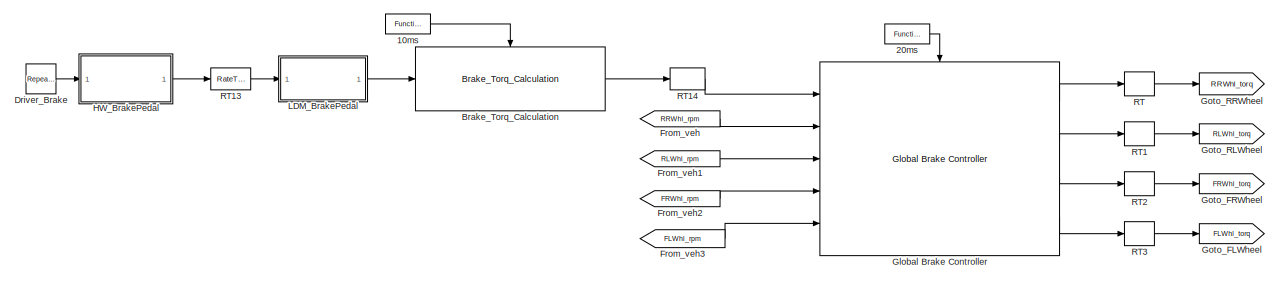
[diagram: root canvas - part 1/3, full width, top band]
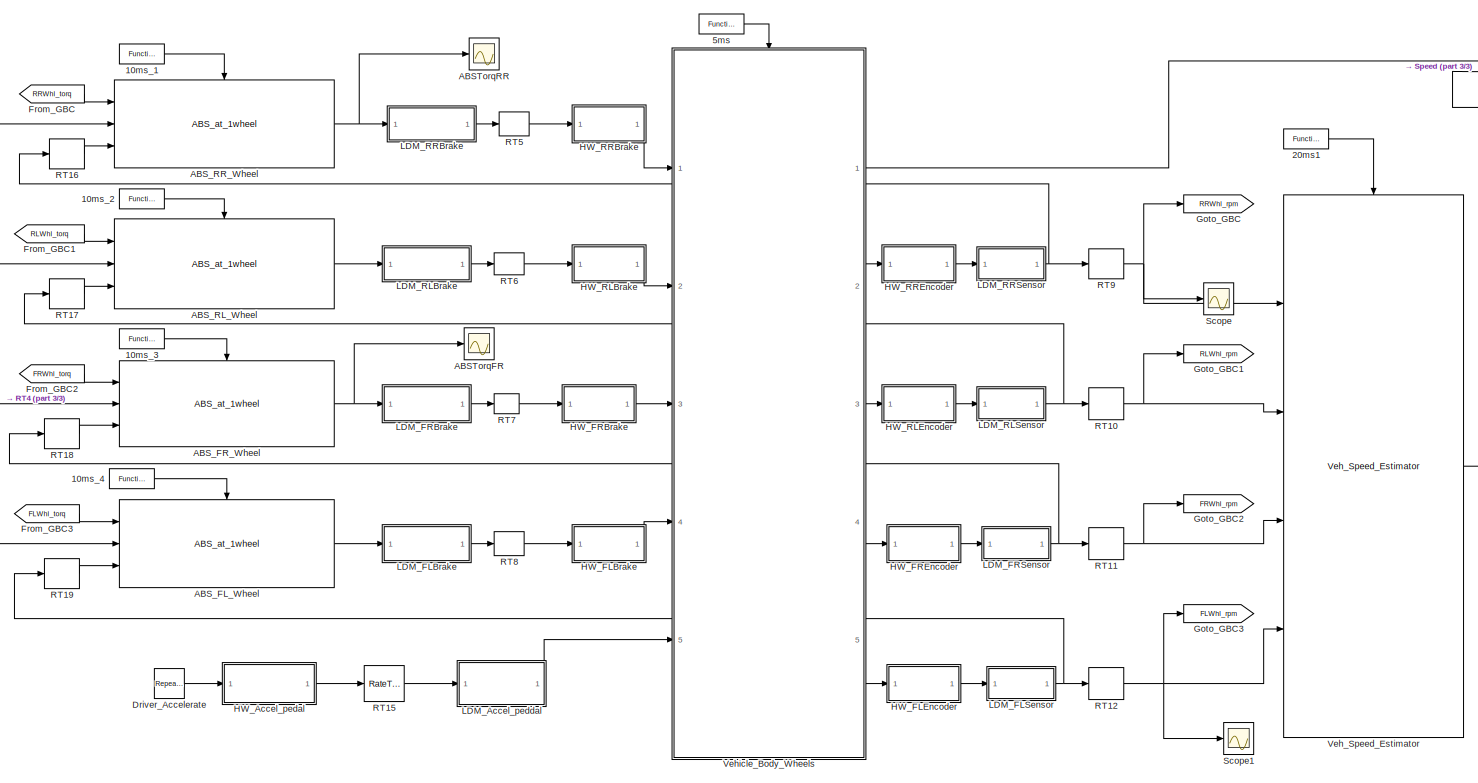
[diagram: root canvas - part 2/3, full width, middle band]
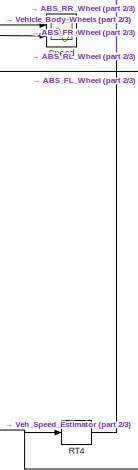
[diagram: root canvas - part 3/3, middle right region]
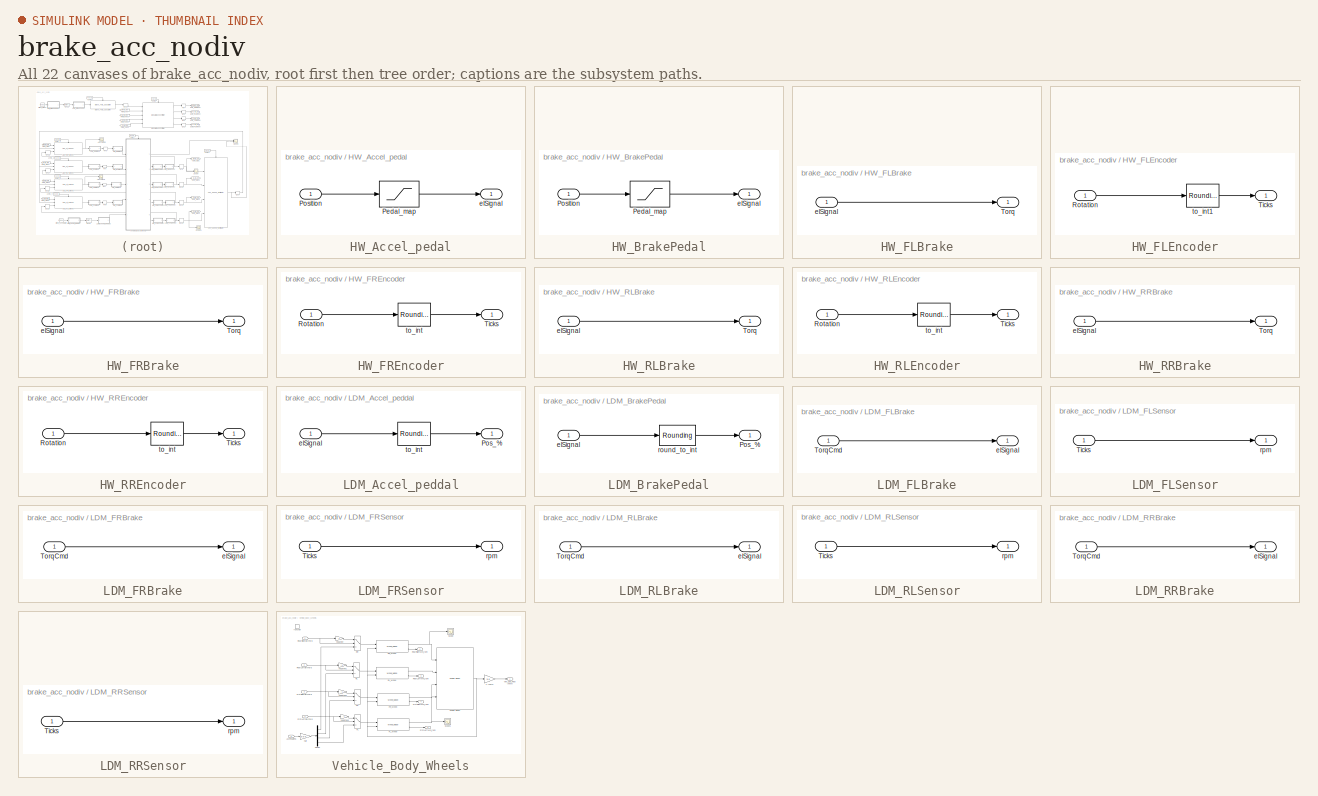
[diagram: thumbnail index - all 22 canvases of the model, root first then tree order]
MODEL brake_acc_nodiv
KIND model
CONFIG PostLoadFcn = parameters
BLOCK [Reference] 10ms  REF=simulink/Ports &\nSubsystems/Function-Call\nGenerator
  Ports = [0, 1]
  SID = 1
  SourceBlock = simulink/Ports &\nSubsystems/Function-Call\nGenerator
  SourceType = Function-Call Generator
  numberOfIterations = 1
  sample_time = T_brake_pedal
BLOCK [Reference] 10ms_1  REF=simulink/Ports &\nSubsystems/Function-Call\nGenerator
  Ports = [0, 1]
  SID = 2
  SourceBlock = simulink/Ports &\nSubsystems/Function-Call\nGenerator
  SourceType = Function-Call Generator
  numberOfIterations = 1
  sample_time = T_abs
BLOCK [Reference] 10ms_2  REF=simulink/Ports &\nSubsystems/Function-Call\nGenerator
  Ports = [0, 1]
  SID = 171
  SourceBlock = simulink/Ports &\nSubsystems/Function-Call\nGenerator
  SourceType = Function-Call Generator
  numberOfIterations = 1
  sample_time = T_abs
BLOCK [Reference] 10ms_3  REF=simulink/Ports &\nSubsystems/Function-Call\nGenerator
  Ports = [0, 1]
  SID = 172
  SourceBlock = simulink/Ports &\nSubsystems/Function-Call\nGenerator
  SourceType = Function-Call Generator
  numberOfIterations = 1
  sample_time = T_abs
BLOCK [Reference] 10ms_4  REF=simulink/Ports &\nSubsystems/Function-Call\nGenerator
  Ports = [0, 1]
  SID = 173
  SourceBlock = simulink/Ports &\nSubsystems/Function-Call\nGenerator
  SourceType = Function-Call Generator
  numberOfIterations = 1
  sample_time = T_abs
BLOCK [Reference] 20ms  REF=simulink/Ports &\nSubsystems/Function-Call\nGenerator
  Ports = [0, 1]
  SID = 6
  SourceBlock = simulink/Ports &\nSubsystems/Function-Call\nGenerator
  SourceType = Function-Call Generator
  numberOfIterations = 1
  sample_time = T_brake_ctrl
BLOCK [Reference] 20ms1  REF=simulink/Ports &\nSubsystems/Function-Call\nGenerator
  Ports = [0, 1]
  SID = 176
  SourceBlock = simulink/Ports &\nSubsystems/Function-Call\nGenerator
  SourceType = Function-Call Generator
  numberOfIterations = 1
  sample_time = T_spd_est
BLOCK [Reference] 5ms  REF=simulink/Ports &\nSubsystems/Function-Call\nGenerator
  Ports = [0, 1]
  SID = 7
  SourceBlock = simulink/Ports &\nSubsystems/Function-Call\nGenerator
  SourceType = Function-Call Generator
  numberOfIterations = 1
  sample_time = T_veh
BLOCK [Scope] ABSTorqFR
  Ports = [1]
  SID = 12
  ScopeSpecificationString = C++SS(StrPVP('Location','[222, 298, 1662, 1122]'),StrPVP('Open','off'),StrPVP('ZoomMode','xonly'),MxPVP('AxesTitles',24,'struct(''axes1'',''%<SignalLabel>'')'),StrPVP('SaveName','ScopeData3'),StrPVP('DataFormat','StructureWithTime'),StrPVP('BlockParamSampleTime','0'),StrPVP('LimitDataPoints','on'),StrPVP('Decimation','1'),StrPVP('BlockParamSampleInput','off'))
BLOCK [Scope] ABSTorqRR
  Ports = [1]
  SID = 13
  ScopeSpecificationString = C++SS(StrPVP('Location','[398, 150, 1838, 974]'),StrPVP('Open','off'),StrPVP('ZoomMode','xonly'),MxPVP('AxesTitles',24,'struct(''axes1'',''%<SignalLabel>'')'),StrPVP('SaveName','ScopeData2'),StrPVP('DataFormat','StructureWithTime'),StrPVP('BlockParamSampleTime','0'),StrPVP('LimitDataPoints','on'),StrPVP('Decimation','1'),StrPVP('BlockParamSampleInput','off'))
BLOCK [Reference] ABS_FL_Wheel  REF=lib_abs_nodiv/ABS_at_1wheel  (lib defined in mdl_9edf84e76d26, mdl_eaaba4e16ff2)
  Ports = [3, 1, 0, 1]
  SID = 155
  SourceBlock = lib_abs_nodiv/ABS_at_1wheel
  SourceType = SubSystem
BLOCK [Reference] ABS_FR_Wheel  REF=lib_abs_nodiv/ABS_at_1wheel  (lib defined in mdl_9edf84e76d26, mdl_eaaba4e16ff2)
  Ports = [3, 1, 0, 1]
  SID = 154
  SourceBlock = lib_abs_nodiv/ABS_at_1wheel
  SourceType = SubSystem
BLOCK [Reference] ABS_RL_Wheel  REF=lib_abs_nodiv/ABS_at_1wheel  (lib defined in mdl_9edf84e76d26, mdl_eaaba4e16ff2)
  Ports = [3, 1, 0, 1]
  SID = 153
  SourceBlock = lib_abs_nodiv/ABS_at_1wheel
  SourceType = SubSystem
BLOCK [Reference] ABS_RR_Wheel  REF=lib_abs_nodiv/ABS_at_1wheel  (lib defined in mdl_9edf84e76d26, mdl_eaaba4e16ff2)
  Ports = [3, 1, 0, 1]
  SID = 152
  SourceBlock = lib_abs_nodiv/ABS_at_1wheel
  SourceType = SubSystem
BLOCK [Reference] Brake_Torq_Calculation  REF=lib_brake_torque_cal_nodiv/Brake_Torq_Calculation  (lib defined in mdl_0e0155897f42)
  Ports = [1, 1, 0, 1]
  SID = 160
  SourceBlock = lib_brake_torque_cal_nodiv/Brake_Torq_Calculation
  SourceType = SubSystem
BLOCK [Reference] Driver_Accelerate  REF=simulink/Sources/Repeating\nSequence
  Ports = [0, 1]
  SID = 16
  SourceBlock = simulink/Sources/Repeating\nSequence
  SourceType = Repeating table
  rep_seq_t = [0 1 10.5 11 100]
  rep_seq_y = [0 100 100 0 0]
BLOCK [Reference] Driver_Brake  REF=simulink/Sources/Repeating\nSequence
  Ports = [0, 1]
  SID = 17
  SourceBlock = simulink/Sources/Repeating\nSequence
  SourceType = Repeating table
  rep_seq_t = [0 19.5 20 100]
  rep_seq_y = [0 0 100 100]
BLOCK [From] From_GBC
  CloseFcn = tagdialog Close
  GotoTag = RRWhl_torq
  SID = 18
BLOCK [From] From_GBC1
  CloseFcn = tagdialog Close
  GotoTag = RLWhl_torq
  SID = 19
BLOCK [From] From_GBC2
  CloseFcn = tagdialog Close
  GotoTag = FRWhl_torq
  SID = 20
BLOCK [From] From_GBC3
  CloseFcn = tagdialog Close
  GotoTag = FLWhl_torq
  SID = 21
BLOCK [From] From_veh
  CloseFcn = tagdialog Close
  GotoTag = RRWhl_rpm
  SID = 22
BLOCK [From] From_veh1
  CloseFcn = tagdialog Close
  GotoTag = RLWhl_rpm
  SID = 23
BLOCK [From] From_veh2
  CloseFcn = tagdialog Close
  GotoTag = FRWhl_rpm
  SID = 24
BLOCK [From] From_veh3
  CloseFcn = tagdialog Close
  GotoTag = FLWhl_rpm
  SID = 25
BLOCK [Reference] Global Brake Controller  REF=lib_global_brake_ctrl_nodiv/Global Brake Controller  (lib defined in mdl_2839c429ef63)
  Ports = [5, 4, 0, 1]
  SID = 157
  SourceBlock = lib_global_brake_ctrl_nodiv/Global Brake Controller
  SourceType = SubSystem
BLOCK [Goto] Goto_FLWheel
  GotoTag = FLWhl_torq
  SID = 27
BLOCK [Goto] Goto_FRWheel
  GotoTag = FRWhl_torq
  SID = 28
BLOCK [Goto] Goto_GBC
  GotoTag = RRWhl_rpm
  SID = 29
BLOCK [Goto] Goto_GBC1
  GotoTag = RLWhl_rpm
  SID = 30
BLOCK [Goto] Goto_GBC2
  GotoTag = FRWhl_rpm
  SID = 245
BLOCK [Goto] Goto_GBC3
  GotoTag = FLWhl_rpm
  SID = 32
BLOCK [Goto] Goto_RLWheel
  GotoTag = RLWhl_torq
  SID = 33
BLOCK [Goto] Goto_RRWheel
  GotoTag = RRWhl_torq
  SID = 34
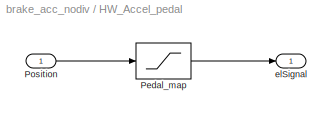
BLOCK [SubSystem] HW_Accel_pedal
  Ports = [1, 1]
  RequestExecContextInheritance = off
  SID = 187
  Variant = off
BLOCK [Saturate] HW_Accel_pedal/Pedal_map
  InputPortMap = u0
  LowerLimit = 0
  Ports = [1, 1]
  SID = 191
  UpperLimit = 100
BLOCK [Inport] HW_Accel_pedal/Position
  IconDisplay = Port number
  SID = 188
BLOCK [Outport] HW_Accel_pedal/elSignal
  IconDisplay = Port number
  SID = 190
BLOCK [SubSystem] HW_BrakePedal
  Ports = [1, 1]
  RequestExecContextInheritance = off
  SID = 35
  Variant = off
BLOCK [Saturate] HW_BrakePedal/Pedal_map
  InputPortMap = u0
  LowerLimit = 0
  Ports = [1, 1]
  SID = 37
  UpperLimit = 100
BLOCK [Inport] HW_BrakePedal/Position
  IconDisplay = Port number
  SID = 36
BLOCK [Outport] HW_BrakePedal/elSignal
  IconDisplay = Port number
  SID = 38
BLOCK [SubSystem] HW_FLBrake
  Ports = [1, 1]
  RequestExecContextInheritance = off
  SID = 39
  Variant = off
BLOCK [Outport] HW_FLBrake/Torq
  IconDisplay = Port number
  SID = 41
BLOCK [Inport] HW_FLBrake/elSignal
  IconDisplay = Port number
  SID = 40
BLOCK [SubSystem] HW_FLEncoder
  Ports = [1, 1]
  RequestExecContextInheritance = off
  SID = 42
  Variant = off
BLOCK [Inport] HW_FLEncoder/Rotation
  IconDisplay = Port number
  SID = 43
BLOCK [Outport] HW_FLEncoder/Ticks
  IconDisplay = Port number
  SID = 45
BLOCK [Rounding] HW_FLEncoder/to_int1
  Operator = round
  SID = 202
BLOCK [SubSystem] HW_FRBrake
  Ports = [1, 1]
  RequestExecContextInheritance = off
  SID = 46
  Variant = off
BLOCK [Outport] HW_FRBrake/Torq
  IconDisplay = Port number
  SID = 48
BLOCK [Inport] HW_FRBrake/elSignal
  IconDisplay = Port number
  SID = 47
BLOCK [SubSystem] HW_FREncoder
  Ports = [1, 1]
  RequestExecContextInheritance = off
  SID = 49
  Variant = off
BLOCK [Inport] HW_FREncoder/Rotation
  IconDisplay = Port number
  SID = 50
BLOCK [Outport] HW_FREncoder/Ticks
  IconDisplay = Port number
  SID = 52
BLOCK [Rounding] HW_FREncoder/to_int
  Operator = round
  SID = 201
BLOCK [SubSystem] HW_RLBrake
  Ports = [1, 1]
  RequestExecContextInheritance = off
  SID = 53
  Variant = off
BLOCK [Outport] HW_RLBrake/Torq
  IconDisplay = Port number
  SID = 55
BLOCK [Inport] HW_RLBrake/elSignal
  IconDisplay = Port number
  SID = 54
BLOCK [SubSystem] HW_RLEncoder
  Ports = [1, 1]
  RequestExecContextInheritance = off
  SID = 56
  Variant = off
BLOCK [Inport] HW_RLEncoder/Rotation
  IconDisplay = Port number
  SID = 57
BLOCK [Outport] HW_RLEncoder/Ticks
  IconDisplay = Port number
  SID = 59
BLOCK [Rounding] HW_RLEncoder/to_int
  Operator = round
  SID = 199
BLOCK [SubSystem] HW_RRBrake
  Ports = [1, 1]
  RequestExecContextInheritance = off
  SID = 60
  Variant = off
BLOCK [Outport] HW_RRBrake/Torq
  IconDisplay = Port number
  SID = 62
BLOCK [Inport] HW_RRBrake/elSignal
  IconDisplay = Port number
  SID = 61
BLOCK [SubSystem] HW_RREncoder
  Ports = [1, 1]
  RequestExecContextInheritance = off
  SID = 63
  Variant = off
BLOCK [Inport] HW_RREncoder/Rotation
  IconDisplay = Port number
  SID = 64
BLOCK [Outport] HW_RREncoder/Ticks
  IconDisplay = Port number
  SID = 66
BLOCK [Rounding] HW_RREncoder/to_int
  Operator = round
  SID = 198
BLOCK [SubSystem] LDM_Accel_peddal
  Ports = [1, 1]
  RequestExecContextInheritance = off
  SID = 192
  Variant = off
BLOCK [Outport] LDM_Accel_peddal/Pos_%
  IconDisplay = Port number
  SID = 195
BLOCK [Inport] LDM_Accel_peddal/elSignal
  IconDisplay = Port number
  SID = 193
BLOCK [Rounding] LDM_Accel_peddal/to_int
  Operator = round
  SID = 203
BLOCK [SubSystem] LDM_BrakePedal
  Ports = [1, 1]
  RequestExecContextInheritance = off
  SID = 67
  Variant = off
BLOCK [Outport] LDM_BrakePedal/Pos_%
  IconDisplay = Port number
  SID = 70
BLOCK [Inport] LDM_BrakePedal/elSignal
  IconDisplay = Port number
  SID = 68
BLOCK [Rounding] LDM_BrakePedal/round_to_int
  Operator = round
  SID = 197
BLOCK [SubSystem] LDM_FLBrake
  Ports = [1, 1]
  RequestExecContextInheritance = off
  SID = 71
  Variant = off
BLOCK [Inport] LDM_FLBrake/TorqCmd
  IconDisplay = Port number
  SID = 72
BLOCK [Outport] LDM_FLBrake/elSignal
  IconDisplay = Port number
  SID = 73
BLOCK [SubSystem] LDM_FLSensor
  Ports = [1, 1]
  RequestExecContextInheritance = off
  SID = 74
  Variant = off
BLOCK [Inport] LDM_FLSensor/Ticks
  IconDisplay = Port number
  SID = 75
BLOCK [Outport] LDM_FLSensor/rpm
  IconDisplay = Port number
  SID = 76
BLOCK [SubSystem] LDM_FRBrake
  Ports = [1, 1]
  RequestExecContextInheritance = off
  SID = 77
  Variant = off
BLOCK [Inport] LDM_FRBrake/TorqCmd
  IconDisplay = Port number
  SID = 78
BLOCK [Outport] LDM_FRBrake/elSignal
  IconDisplay = Port number
  SID = 79
BLOCK [SubSystem] LDM_FRSensor
  Ports = [1, 1]
  RequestExecContextInheritance = off
  SID = 80
  Variant = off
BLOCK [Inport] LDM_FRSensor/Ticks
  IconDisplay = Port number
  SID = 81
BLOCK [Outport] LDM_FRSensor/rpm
  IconDisplay = Port number
  SID = 82
BLOCK [SubSystem] LDM_RLBrake
  Ports = [1, 1]
  RequestExecContextInheritance = off
  SID = 83
  Variant = off
BLOCK [Inport] LDM_RLBrake/TorqCmd
  IconDisplay = Port number
  SID = 84
BLOCK [Outport] LDM_RLBrake/elSignal
  IconDisplay = Port number
  SID = 85
BLOCK [SubSystem] LDM_RLSensor
  Ports = [1, 1]
  RequestExecContextInheritance = off
  SID = 86
  Variant = off
BLOCK [Inport] LDM_RLSensor/Ticks
  IconDisplay = Port number
  SID = 87
BLOCK [Outport] LDM_RLSensor/rpm
  IconDisplay = Port number
  SID = 88
BLOCK [SubSystem] LDM_RRBrake
  Ports = [1, 1]
  RequestExecContextInheritance = off
  SID = 89
  Variant = off
BLOCK [Inport] LDM_RRBrake/TorqCmd
  IconDisplay = Port number
  SID = 90
BLOCK [Outport] LDM_RRBrake/elSignal
  IconDisplay = Port number
  SID = 91
BLOCK [SubSystem] LDM_RRSensor
  Ports = [1, 1]
  RequestExecContextInheritance = off
  SID = 92
  Variant = off
BLOCK [Inport] LDM_RRSensor/Ticks
  IconDisplay = Port number
  SID = 93
BLOCK [Outport] LDM_RRSensor/rpm
  IconDisplay = Port number
  SID = 94
BLOCK [RateTransition] RT
  SID = 95
BLOCK [RateTransition] RT1
  SID = 96
BLOCK [RateTransition] RT10
  SID = 243
  X0 = w0*30/pi
BLOCK [RateTransition] RT11
  SID = 244
  X0 = w0*30/pi
BLOCK [RateTransition] RT12
  SID = 246
  X0 = w0*30/pi
BLOCK [RateTransition] RT13
  SID = 178
BLOCK [RateTransition] RT14
  SID = 109
BLOCK [RateTransition] RT15
  SID = 196
BLOCK [RateTransition] RT16
  SID = 238
  X0 = w0*30/pi
BLOCK [RateTransition] RT17
  SID = 239
  X0 = w0*30/pi
BLOCK [RateTransition] RT18
  SID = 240
  X0 = w0*30/pi
BLOCK [RateTransition] RT19
  SID = 241
  X0 = w0*30/pi
BLOCK [RateTransition] RT2
  SID = 101
BLOCK [RateTransition] RT3
  SID = 102
BLOCK [RateTransition] RT4
  SID = 177
  X0 = v0*3.6
BLOCK [RateTransition] RT5
  SID = 104
BLOCK [RateTransition] RT6
  SID = 105
BLOCK [RateTransition] RT7
  SID = 106
BLOCK [RateTransition] RT8
  SID = 107
BLOCK [RateTransition] RT9
  SID = 242
  X0 = w0*30/pi
BLOCK [Scope] Scope
  Ports = [1]
  SID = 110
  ScopeSpecificationString = C++SS(StrPVP('Location','[6, 45, 1446, 869]'),StrPVP('Open','off'),MxPVP('AxesTitles',24,'struct(''axes1'',''%<SignalLabel>'')'),StrPVP('SaveName','ScopeData5'),StrPVP('DataFormat','StructureWithTime'),StrPVP('BlockParamSampleTime','0'),StrPVP('LimitDataPoints','on'),StrPVP('Decimation','1'),StrPVP('BlockParamSampleInput','off'))
BLOCK [Scope] Scope1
  Ports = [1]
  SID = 111
  ScopeSpecificationString = C++SS(StrPVP('Location','[6, 45, 1446, 869]'),StrPVP('Open','off'),MxPVP('AxesTitles',24,'struct(''axes1'',''%<SignalLabel>'')'),StrPVP('SaveName','ScopeData1'),StrPVP('DataFormat','StructureWithTime'),StrPVP('BlockParamSampleTime','0'),StrPVP('LimitDataPoints','on'),StrPVP('Decimation','1'),StrPVP('BlockParamSampleInput','off'))
BLOCK [Scope] Speed
  NumInputPorts = 2
  Ports = [2]
  SID = 112
  ScopeSpecificationString = C++SS(StrPVP('Location','[6, 88, 1606, 939]'),StrPVP('Open','off'),StrPVP('ZoomMode','xonly'),MxPVP('AxesTitles',24,'struct(''axes1'',''%<SignalLabel>'',''axes2'',''%<SignalLabel>'')'),StrPVP('YMin','-5~-5'),StrPVP('YMax','5~5'),StrPVP('DataFormat','StructureWithTime'),StrPVP('LimitDataPoints','off'),StrPVP('BlockParamSampleTime','0'),StrPVP('Decimation','1'),StrPVP('BlockParamSampleInput','off'))
BLOCK [Reference] Veh_Speed_Estimator  REF=lib_spd_estimator_nodiv/Veh_Speed_Estimator  (lib defined in mdl_9bc9c54a5b6e)
  Ports = [4, 1, 0, 1]
  SID = 175
  SourceBlock = lib_spd_estimator_nodiv/Veh_Speed_Estimator
  SourceType = SubSystem
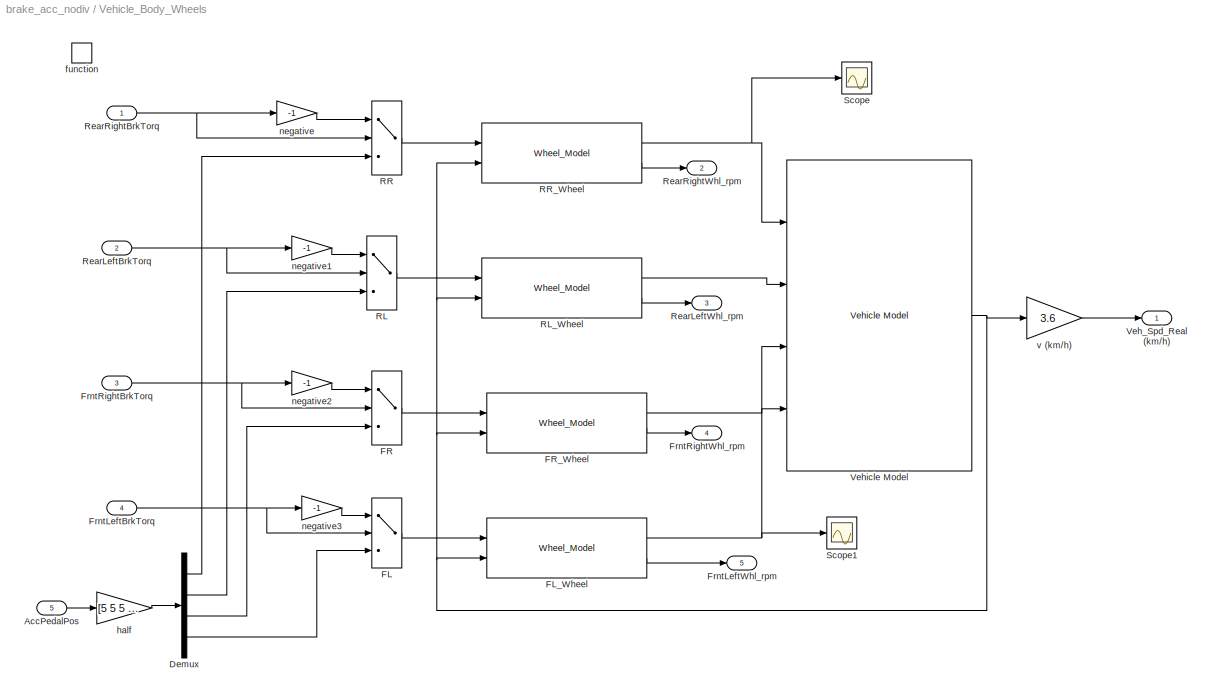
BLOCK [SubSystem] Vehicle_Body_Wheels
  Ports = [5, 5, 0, 1]
  RequestExecContextInheritance = off
  SID = 113
  Variant = off
BLOCK [Inport] Vehicle_Body_Wheels/AccPedalPos
  IconDisplay = Port number
  Port = 5
  SID = 118
BLOCK [Demux] Vehicle_Body_Wheels/Demux
  DisplayOption = bar
  Ports = [1, 4]
  SID = 120
BLOCK [Switch] Vehicle_Body_Wheels/FL
  Criteria = u2 > Threshold
  InputSameDT = off
  SID = 123
  SaturateOnIntegerOverflow = off
BLOCK [Reference] Vehicle_Body_Wheels/FL_Wheel  REF=lib_wheel_nodiv/Wheel_Model  (lib defined in mdl_272e79c615f4)
  Ports = [2, 2]
  SID = 162
  SourceBlock = lib_wheel_nodiv/Wheel_Model
  SourceType = SubSystem
BLOCK [Switch] Vehicle_Body_Wheels/FR
  Criteria = u2 > Threshold
  InputSameDT = off
  SID = 121
  SaturateOnIntegerOverflow = off
BLOCK [Reference] Vehicle_Body_Wheels/FR_Wheel  REF=lib_wheel_nodiv/Wheel_Model  (lib defined in mdl_272e79c615f4)
  Ports = [2, 2]
  SID = 163
  SourceBlock = lib_wheel_nodiv/Wheel_Model
  SourceType = SubSystem
BLOCK [Inport] Vehicle_Body_Wheels/FrntLeftBrkTorq
  IconDisplay = Port number
  Port = 4
  SID = 117
BLOCK [Outport] Vehicle_Body_Wheels/FrntLeftWhl_rpm
  IconDisplay = Port number
  Port = 5
  SID = 138
BLOCK [Inport] Vehicle_Body_Wheels/FrntRightBrkTorq
  IconDisplay = Port number
  Port = 3
  SID = 116
BLOCK [Outport] Vehicle_Body_Wheels/FrntRightWhl_rpm
  IconDisplay = Port number
  Port = 4
  SID = 137
BLOCK [Switch] Vehicle_Body_Wheels/RL
  Criteria = u2 > Threshold
  InputSameDT = off
  SID = 127
  SaturateOnIntegerOverflow = off
BLOCK [Reference] Vehicle_Body_Wheels/RL_Wheel  REF=lib_wheel_nodiv/Wheel_Model  (lib defined in mdl_272e79c615f4)
  Ports = [2, 2]
  SID = 167
  SourceBlock = lib_wheel_nodiv/Wheel_Model
  SourceType = SubSystem
BLOCK [Switch] Vehicle_Body_Wheels/RR
  Criteria = u2 > Threshold
  InputSameDT = off
  SID = 126
  SaturateOnIntegerOverflow = off
BLOCK [Reference] Vehicle_Body_Wheels/RR_Wheel  REF=lib_wheel_nodiv/Wheel_Model  (lib defined in mdl_272e79c615f4)
  Ports = [2, 2]
  SID = 165
  SourceBlock = lib_wheel_nodiv/Wheel_Model
  SourceType = SubSystem
BLOCK [Inport] Vehicle_Body_Wheels/RearLeftBrkTorq
  IconDisplay = Port number
  Port = 2
  SID = 115
BLOCK [Outport] Vehicle_Body_Wheels/RearLeftWhl_rpm
  IconDisplay = Port number
  Port = 3
  SID = 136
BLOCK [Inport] Vehicle_Body_Wheels/RearRightBrkTorq
  IconDisplay = Port number
  SID = 114
BLOCK [Outport] Vehicle_Body_Wheels/RearRightWhl_rpm
  IconDisplay = Port number
  Port = 2
  SID = 135
BLOCK [Scope] Vehicle_Body_Wheels/Scope
  Ports = [1]
  SID = 129
  ScopeSpecificationString = C++SS(StrPVP('Location','[185, 250, 1625, 1074]'),StrPVP('Open','off'),MxPVP('AxesTitles',24,'struct(''axes1'',''%<SignalLabel>'')'),StrPVP('SaveName','ScopeData4'),StrPVP('DataFormat','StructureWithTime'),StrPVP('BlockParamSampleTime','0'),StrPVP('LimitDataPoints','on'),StrPVP('Decimation','1'),StrPVP('BlockParamSampleInput','off'))
BLOCK [Scope] Vehicle_Body_Wheels/Scope1
  Ports = [1]
  SID = 139
  ScopeSpecificationString = C++SS(StrPVP('Location','[6, 45, 1446, 869]'),StrPVP('Open','off'),MxPVP('AxesTitles',24,'struct(''axes1'',''%<SignalLabel>'')'),StrPVP('SaveName','ScopeData6'),StrPVP('DataFormat','StructureWithTime'),StrPVP('LimitDataPoints','off'),StrPVP('BlockParamSampleTime','0'),StrPVP('Decimation','1'),StrPVP('BlockParamSampleInput','off'))
BLOCK [Outport] Vehicle_Body_Wheels/Veh_Spd_Real (km//h)
  IconDisplay = Port number
  SID = 134
BLOCK [Reference] Vehicle_Body_Wheels/Vehicle Model  REF=lib_vehicle_nodiv/Vehicle Model  (lib defined in mdl_49a2e64d3b83)
  Ports = [4, 1]
  SID = 169
  SourceBlock = lib_vehicle_nodiv/Vehicle Model
  SourceType = SubSystem
BLOCK [TriggerPort] Vehicle_Body_Wheels/function
  Ports = []
  SID = 119
  StatesWhenEnabling = held
  TriggerType = function-call
  VariantControl = Variant
BLOCK [Gain] Vehicle_Body_Wheels/half
  Gain = [5 5 5 5]
  OutDataTypeStr = Inherit: Inherit via internal rule
  ParamDataTypeStr = double
  SID = 132
  SaturateOnIntegerOverflow = off
BLOCK [Gain] Vehicle_Body_Wheels/negative
  Gain = -1
  OutDataTypeStr = Inherit: Inherit via internal rule
  ParamDataTypeStr = Inherit: Inherit via internal rule
  SID = 204
  SaturateOnIntegerOverflow = off
BLOCK [Gain] Vehicle_Body_Wheels/negative1
  Gain = -1
  OutDataTypeStr = Inherit: Inherit via internal rule
  ParamDataTypeStr = Inherit: Inherit via internal rule
  SID = 205
  SaturateOnIntegerOverflow = off
BLOCK [Gain] Vehicle_Body_Wheels/negative2
  Gain = -1
  OutDataTypeStr = Inherit: Inherit via internal rule
  ParamDataTypeStr = Inherit: Inherit via internal rule
  SID = 206
  SaturateOnIntegerOverflow = off
BLOCK [Gain] Vehicle_Body_Wheels/negative3
  Gain = -1
  OutDataTypeStr = Inherit: Inherit via internal rule
  ParamDataTypeStr = Inherit: Inherit via internal rule
  SID = 207
  SaturateOnIntegerOverflow = off
BLOCK [Gain] Vehicle_Body_Wheels/v (km//h)
  Gain = 3.6
  OutDataTypeStr = Inherit: Inherit via internal rule
  OutMax = 200
  OutMin = 0
  ParamDataTypeStr = Inherit: Inherit via internal rule
  SID = 133
  SaturateOnIntegerOverflow = off
LINE 10ms:1 -> Brake_Torq_Calculation:trigger
LINE 10ms_1:1 -> ABS_RR_Wheel:trigger
LINE 10ms_2:1 -> ABS_RL_Wheel:trigger
LINE 10ms_3:1 -> ABS_FR_Wheel:trigger
LINE 10ms_4:1 -> ABS_FL_Wheel:trigger
LINE 20ms1:1 -> Veh_Speed_Estimator:trigger
LINE 20ms:1 -> Global Brake Controller:trigger
LINE 5ms:1 -> Vehicle_Body_Wheels:trigger
LINE ABS_FL_Wheel:1 -> LDM_FLBrake:1
NET ABS_FR_Wheel:1 -> ABSTorqFR:1, LDM_FRBrake:1
LINE ABS_RL_Wheel:1 -> LDM_RLBrake:1
NET ABS_RR_Wheel:1 -> ABSTorqRR:1, LDM_RRBrake:1
LINE Brake_Torq_Calculation:1 -> RT14:1
LINE Driver_Accelerate:1 -> HW_Accel_pedal:1
LINE Driver_Brake:1 -> HW_BrakePedal:1
LINE From_GBC1:1 -> ABS_RL_Wheel:1
LINE From_GBC2:1 -> ABS_FR_Wheel:1
LINE From_GBC3:1 -> ABS_FL_Wheel:1
LINE From_GBC:1 -> ABS_RR_Wheel:1
LINE From_veh1:1 -> Global Brake Controller:3
LINE From_veh2:1 -> Global Brake Controller:4
LINE From_veh3:1 -> Global Brake Controller:5
LINE From_veh:1 -> Global Brake Controller:2
LINE Global Brake Controller:1 -> RT:1
LINE Global Brake Controller:2 -> RT1:1
LINE Global Brake Controller:3 -> RT2:1
LINE Global Brake Controller:4 -> RT3:1
LINE HW_Accel_pedal/Pedal_map:1 -> HW_Accel_pedal/elSignal:1
LINE HW_Accel_pedal/Position:1 -> HW_Accel_pedal/Pedal_map:1
LINE HW_Accel_pedal:1 -> RT15:1
LINE HW_BrakePedal/Pedal_map:1 -> HW_BrakePedal/elSignal:1
LINE HW_BrakePedal/Position:1 -> HW_BrakePedal/Pedal_map:1
LINE HW_BrakePedal:1 -> RT13:1
LINE HW_FLBrake/elSignal:1 -> HW_FLBrake/Torq:1
LINE HW_FLBrake:1 -> Vehicle_Body_Wheels:4
LINE HW_FLEncoder/Rotation:1 -> HW_FLEncoder/to_int1:1
LINE HW_FLEncoder/to_int1:1 -> HW_FLEncoder/Ticks:1
LINE HW_FLEncoder:1 -> LDM_FLSensor:1
LINE HW_FRBrake/elSignal:1 -> HW_FRBrake/Torq:1
LINE HW_FRBrake:1 -> Vehicle_Body_Wheels:3
LINE HW_FREncoder/Rotation:1 -> HW_FREncoder/to_int:1
LINE HW_FREncoder/to_int:1 -> HW_FREncoder/Ticks:1
LINE HW_FREncoder:1 -> LDM_FRSensor:1
LINE HW_RLBrake/elSignal:1 -> HW_RLBrake/Torq:1
LINE HW_RLBrake:1 -> Vehicle_Body_Wheels:2
LINE HW_RLEncoder/Rotation:1 -> HW_RLEncoder/to_int:1
LINE HW_RLEncoder/to_int:1 -> HW_RLEncoder/Ticks:1
LINE HW_RLEncoder:1 -> LDM_RLSensor:1
LINE HW_RRBrake/elSignal:1 -> HW_RRBrake/Torq:1
LINE HW_RRBrake:1 -> Vehicle_Body_Wheels:1
LINE HW_RREncoder/Rotation:1 -> HW_RREncoder/to_int:1
LINE HW_RREncoder/to_int:1 -> HW_RREncoder/Ticks:1
LINE HW_RREncoder:1 -> LDM_RRSensor:1
LINE LDM_Accel_peddal/elSignal:1 -> LDM_Accel_peddal/to_int:1
LINE LDM_Accel_peddal/to_int:1 -> LDM_Accel_peddal/Pos_%:1
LINE LDM_Accel_peddal:1 -> Vehicle_Body_Wheels:5
LINE LDM_BrakePedal/elSignal:1 -> LDM_BrakePedal/round_to_int:1
LINE LDM_BrakePedal/round_to_int:1 -> LDM_BrakePedal/Pos_%:1
LINE LDM_BrakePedal:1 -> Brake_Torq_Calculation:1
LINE LDM_FLBrake/TorqCmd:1 -> LDM_FLBrake/elSignal:1
LINE LDM_FLBrake:1 -> RT8:1
LINE LDM_FLSensor/Ticks:1 -> LDM_FLSensor/rpm:1
NET LDM_FLSensor:1 -> RT12:1, RT19:1
LINE LDM_FRBrake/TorqCmd:1 -> LDM_FRBrake/elSignal:1
LINE LDM_FRBrake:1 -> RT7:1
LINE LDM_FRSensor/Ticks:1 -> LDM_FRSensor/rpm:1
NET LDM_FRSensor:1 -> RT11:1, RT18:1
LINE LDM_RLBrake/TorqCmd:1 -> LDM_RLBrake/elSignal:1
LINE LDM_RLBrake:1 -> RT6:1
LINE LDM_RLSensor/Ticks:1 -> LDM_RLSensor/rpm:1
NET LDM_RLSensor:1 -> RT10:1, RT17:1
LINE LDM_RRBrake/TorqCmd:1 -> LDM_RRBrake/elSignal:1
LINE LDM_RRBrake:1 -> RT5:1
LINE LDM_RRSensor/Ticks:1 -> LDM_RRSensor/rpm:1
NET LDM_RRSensor:1 -> RT16:1, RT9:1
NET RT10:1 -> Goto_GBC1:1, Veh_Speed_Estimator:2
NET RT11:1 -> Goto_GBC2:1, Veh_Speed_Estimator:3
NET RT12:1 -> Goto_GBC3:1, Scope1:1, Veh_Speed_Estimator:4
LINE RT13:1 -> LDM_BrakePedal:1
LINE RT14:1 -> Global Brake Controller:1
LINE RT15:1 -> LDM_Accel_peddal:1
LINE RT16:1 -> ABS_RR_Wheel:3
LINE RT17:1 -> ABS_RL_Wheel:3
LINE RT18:1 -> ABS_FR_Wheel:3
LINE RT19:1 -> ABS_FL_Wheel:3
LINE RT1:1 -> Goto_RLWheel:1
LINE RT2:1 -> Goto_FRWheel:1
LINE RT3:1 -> Goto_FLWheel:1
NET RT4:1 -> ABS_FL_Wheel:2, ABS_FR_Wheel:2, ABS_RL_Wheel:2, ABS_RR_Wheel:2
LINE RT5:1 -> HW_RRBrake:1
LINE RT6:1 -> HW_RLBrake:1
LINE RT7:1 -> HW_FRBrake:1
LINE RT8:1 -> HW_FLBrake:1
NET RT9:1 -> Goto_GBC:1, Scope:1, Veh_Speed_Estimator:1
LINE RT:1 -> Goto_RRWheel:1
NET Veh_Speed_Estimator:1 -> RT4:1, Speed:2
LINE Vehicle_Body_Wheels/AccPedalPos:1 -> Vehicle_Body_Wheels/half:1
LINE Vehicle_Body_Wheels/Demux:1 -> Vehicle_Body_Wheels/RR:3
LINE Vehicle_Body_Wheels/Demux:2 -> Vehicle_Body_Wheels/RL:3
LINE Vehicle_Body_Wheels/Demux:3 -> Vehicle_Body_Wheels/FR:3
LINE Vehicle_Body_Wheels/Demux:4 -> Vehicle_Body_Wheels/FL:3
LINE Vehicle_Body_Wheels/FL:1 -> Vehicle_Body_Wheels/FL_Wheel:1
NET Vehicle_Body_Wheels/FL_Wheel:1 -> Vehicle_Body_Wheels/Scope1:1, Vehicle_Body_Wheels/Vehicle Model:4
LINE Vehicle_Body_Wheels/FL_Wheel:2 -> Vehicle_Body_Wheels/FrntLeftWhl_rpm:1
LINE Vehicle_Body_Wheels/FR:1 -> Vehicle_Body_Wheels/FR_Wheel:1
LINE Vehicle_Body_Wheels/FR_Wheel:1 -> Vehicle_Body_Wheels/Vehicle Model:3
LINE Vehicle_Body_Wheels/FR_Wheel:2 -> Vehicle_Body_Wheels/FrntRightWhl_rpm:1
NET Vehicle_Body_Wheels/FrntLeftBrkTorq:1 -> Vehicle_Body_Wheels/FL:2, Vehicle_Body_Wheels/negative3:1
NET Vehicle_Body_Wheels/FrntRightBrkTorq:1 -> Vehicle_Body_Wheels/FR:2, Vehicle_Body_Wheels/negative2:1
LINE Vehicle_Body_Wheels/RL:1 -> Vehicle_Body_Wheels/RL_Wheel:1
LINE Vehicle_Body_Wheels/RL_Wheel:1 -> Vehicle_Body_Wheels/Vehicle Model:2
LINE Vehicle_Body_Wheels/RL_Wheel:2 -> Vehicle_Body_Wheels/RearLeftWhl_rpm:1
LINE Vehicle_Body_Wheels/RR:1 -> Vehicle_Body_Wheels/RR_Wheel:1
NET Vehicle_Body_Wheels/RR_Wheel:1 -> Vehicle_Body_Wheels/Scope:1, Vehicle_Body_Wheels/Vehicle Model:1
LINE Vehicle_Body_Wheels/RR_Wheel:2 -> Vehicle_Body_Wheels/RearRightWhl_rpm:1
NET Vehicle_Body_Wheels/RearLeftBrkTorq:1 -> Vehicle_Body_Wheels/RL:2, Vehicle_Body_Wheels/negative1:1
NET Vehicle_Body_Wheels/RearRightBrkTorq:1 -> Vehicle_Body_Wheels/RR:2, Vehicle_Body_Wheels/negative:1
NET Vehicle_Body_Wheels/Vehicle Model:1 -> Vehicle_Body_Wheels/FL_Wheel:2, Vehicle_Body_Wheels/FR_Wheel:2, Vehicle_Body_Wheels/RL_Wheel:2, Vehicle_Body_Wheels/RR_Wheel:2, Vehicle_Body_Wheels/v (km//h):1
LINE Vehicle_Body_Wheels/half:1 -> Vehicle_Body_Wheels/Demux:1
LINE Vehicle_Body_Wheels/negative1:1 -> Vehicle_Body_Wheels/RL:1
LINE Vehicle_Body_Wheels/negative2:1 -> Vehicle_Body_Wheels/FR:1
LINE Vehicle_Body_Wheels/negative3:1 -> Vehicle_Body_Wheels/FL:1
LINE Vehicle_Body_Wheels/negative:1 -> Vehicle_Body_Wheels/RR:1
LINE Vehicle_Body_Wheels/v (km//h):1 -> Vehicle_Body_Wheels/Veh_Spd_Real (km//h):1
LINE Vehicle_Body_Wheels:1 -> Speed:1
LINE Vehicle_Body_Wheels:2 -> HW_RREncoder:1
LINE Vehicle_Body_Wheels:3 -> HW_RLEncoder:1
LINE Vehicle_Body_Wheels:4 -> HW_FREncoder:1
LINE Vehicle_Body_Wheels:5 -> HW_FLEncoder:1
note: NET lines group one-source signal fan-out (src -> all destinations, sorted); 1:1 wires keep LINE
